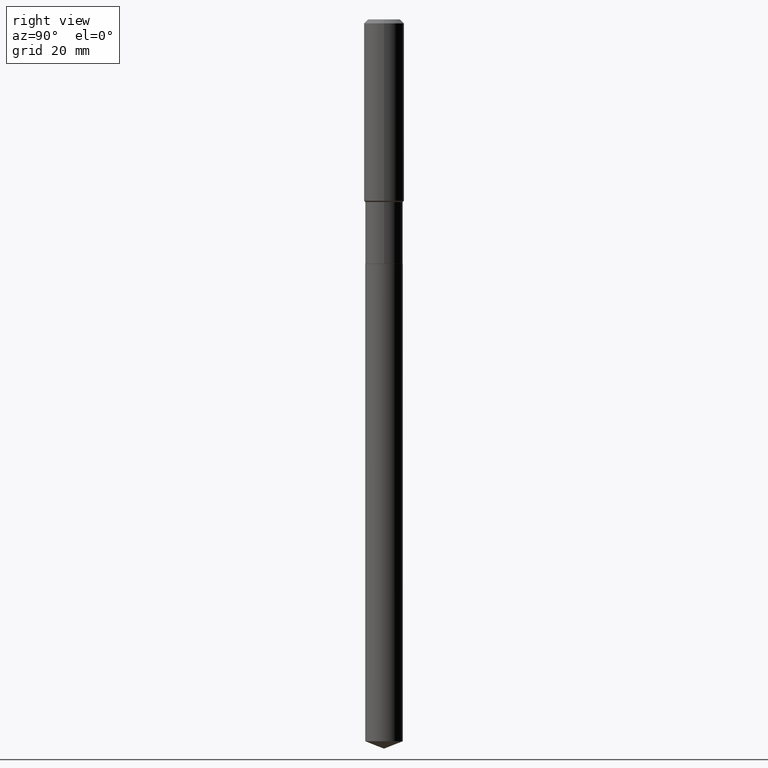
[diagram: clean part render]
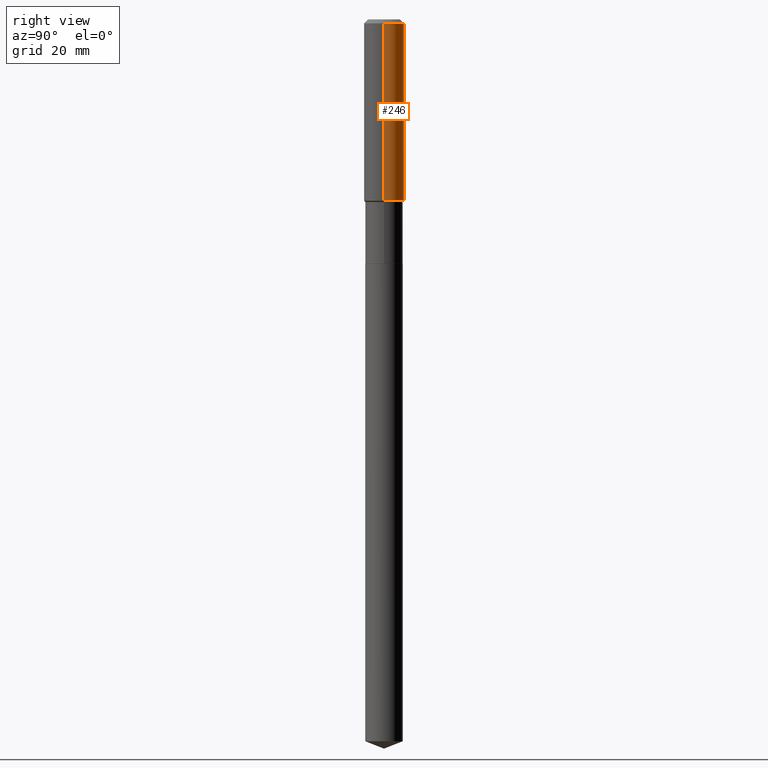
[diagram: same view with one face highlighted and labeled with its STEP entity id]
A machine part, right view. The second image highlights one B-rep face of the part: STEP entity #246.
In plain terms, the highlighted cylindrical surface (edge-blend (fillet) strip) has radius 5 mm, axis along (-0, 0, 1).
Its self-contained STEP definition (entity closure, byte-faithful):
#1 = VERTEX_POINT ( 'NONE', #459 ) ;
#17 = DIRECTION ( 'NONE',  ( -2.445468806185136597E-29, 3.491481338843145583E-15, 1.000000000000000000 ) ) ;
#31 = CIRCLE ( 'NONE', #306, 0.1968500000000002192 ) ;
#44 = AXIS2_PLACEMENT_3D ( 'NONE', #245, #393, #310 ) ;
#71 = DIRECTION ( 'NONE',  ( 1.000000000000000000, -6.982962677686265922E-15, 0.000000000000000000 ) ) ;
#88 = VERTEX_POINT ( 'NONE', #355 ) ;
#91 = FACE_OUTER_BOUND ( 'NONE', #420, .T. ) ;
#104 = DIRECTION ( 'NONE',  ( -2.445468806185136877E-29, 3.491481338843145188E-15, 1.000000000000000000 ) ) ;
#141 = LINE ( 'NONE', #332, #490 ) ;
#152 = EDGE_CURVE ( 'NONE', #1, #88, #141, .T. ) ;
#156 = VERTEX_POINT ( 'NONE', #260 ) ;
#163 = DIRECTION ( 'NONE',  ( 1.000000000000000000, -6.982962677686265922E-15, 0.000000000000000000 ) ) ;
#177 = CARTESIAN_POINT ( 'NONE',  ( -0.1968500000000000250, -1.780849020687141152E-15, -0.03937000000000024508 ) ) ;
#187 = EDGE_CURVE ( 'NONE', #88, #452, #397, .T. ) ;
#193 = AXIS2_PLACEMENT_3D ( 'NONE', #410, #17, #163 ) ;
#202 = CYLINDRICAL_SURFACE ( 'NONE', #44, 0.1968500000000001082 ) ;
#245 = CARTESIAN_POINT ( 'NONE',  ( 0.000000000000000000, 0.000000000000000000, 0.000000000000000000 ) ) ;
#246 = ADVANCED_FACE ( 'NONE', ( #91 ), #202, .T. ) ;
#260 = CARTESIAN_POINT ( 'NONE',  ( -0.1968500000000002192, -4.822941796407783722E-15, -1.781950000000000145 ) ) ;
#269 = ORIENTED_EDGE ( 'NONE', *, *, #450, .T. ) ;
#306 = AXIS2_PLACEMENT_3D ( 'NONE', #444, #409, #71 ) ;
#310 = DIRECTION ( 'NONE',  ( 1.000000000000000000, -6.982962677686266711E-15, 4.876176775795935793E-29 ) ) ;
#332 = CARTESIAN_POINT ( 'NONE',  ( 0.1968500000000001082, -1.374596203102542397E-15, 9.598753983154305062E-30 ) ) ;
#355 = CARTESIAN_POINT ( 'NONE',  ( 0.1968500000000000250, -1.512055823412797189E-15, -0.03937000000000024508 ) ) ;
#384 = ORIENTED_EDGE ( 'NONE', *, *, #152, .F. ) ;
#393 = DIRECTION ( 'NONE',  ( -2.445468806185136597E-29, 3.491481338843145583E-15, 1.000000000000000000 ) ) ;
#397 = CIRCLE ( 'NONE', #193, 0.1968500000000000250 ) ;
#399 = VECTOR ( 'NONE', #104, 39.37007874015748143 ) ;
#409 = DIRECTION ( 'NONE',  ( -2.445468806185136597E-29, 3.491481338843145583E-15, 1.000000000000000000 ) ) ;
#410 = CARTESIAN_POINT ( 'NONE',  ( 9.627810689950943645E-31, -1.374596203102555315E-16, -0.03937000000000024508 ) ) ;
#417 = ORIENTED_EDGE ( 'NONE', *, *, #487, .T. ) ;
#420 = EDGE_LOOP ( 'NONE', ( #269, #417, #481, #384 ) ) ;
#443 = CARTESIAN_POINT ( 'NONE',  ( -0.1968500000000001082, 1.398703375343757985E-15, -9.682923725166787881E-30 ) ) ;
#444 = CARTESIAN_POINT ( 'NONE',  ( 4.357703139181603812E-29, -6.221645171751543877E-15, -1.781950000000000145 ) ) ;
#450 = EDGE_CURVE ( 'NONE', #1, #156, #31, .T. ) ;
#452 = VERTEX_POINT ( 'NONE', #177 ) ;
#459 = CARTESIAN_POINT ( 'NONE',  ( 0.1968500000000002192, -7.596241374854087063E-15, -1.781950000000000145 ) ) ;
#478 = DIRECTION ( 'NONE',  ( -2.445468806185136877E-29, 3.491481338843145188E-15, 1.000000000000000000 ) ) ;
#479 = LINE ( 'NONE', #443, #399 ) ;
#481 = ORIENTED_EDGE ( 'NONE', *, *, #187, .F. ) ;
#487 = EDGE_CURVE ( 'NONE', #156, #452, #479, .T. ) ;
#490 = VECTOR ( 'NONE', #478, 39.37007874015748143 ) ;